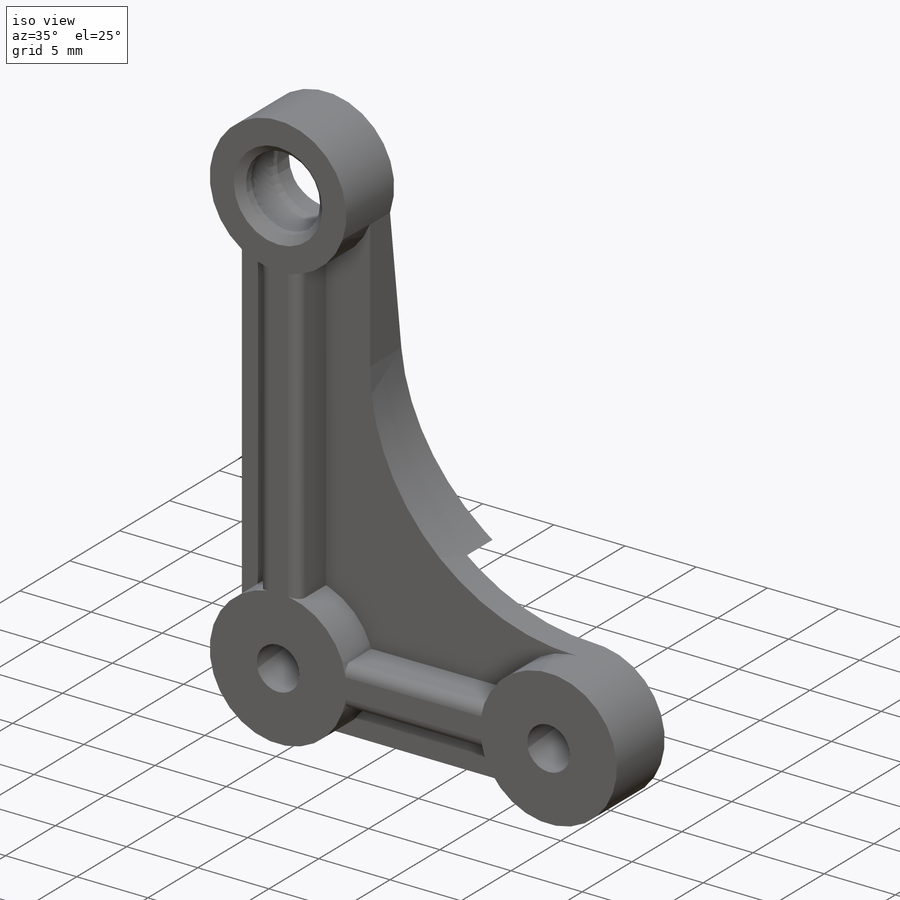
[diagram: iso view]
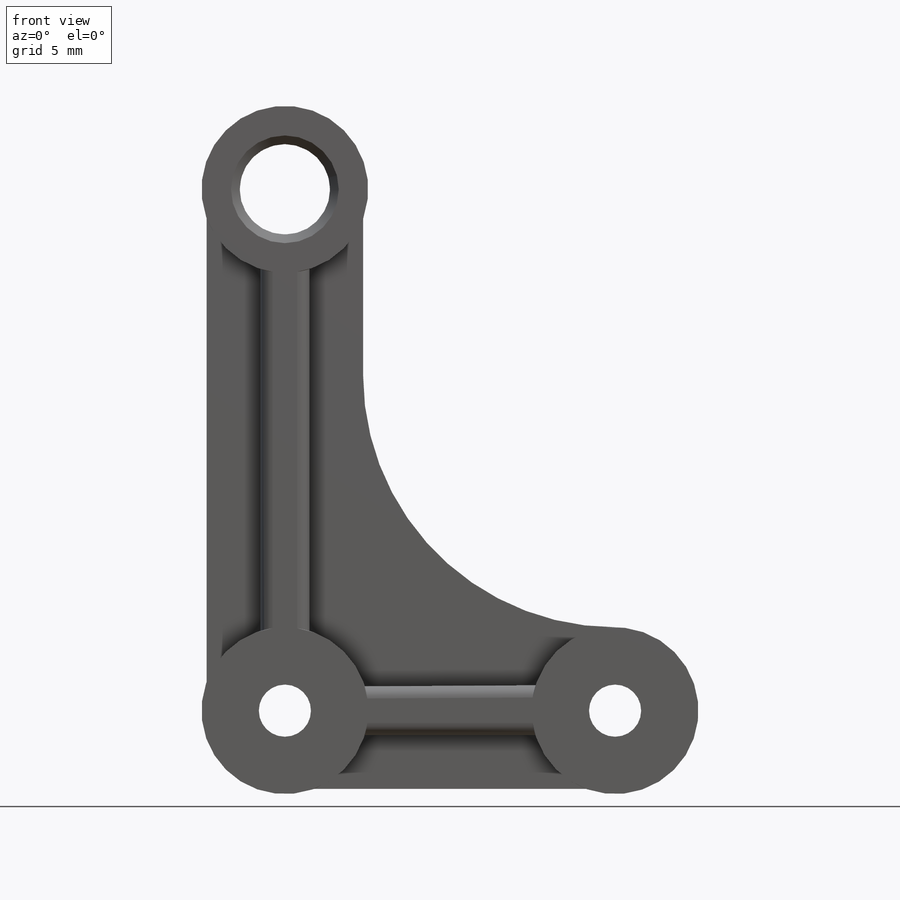
[diagram: front view]
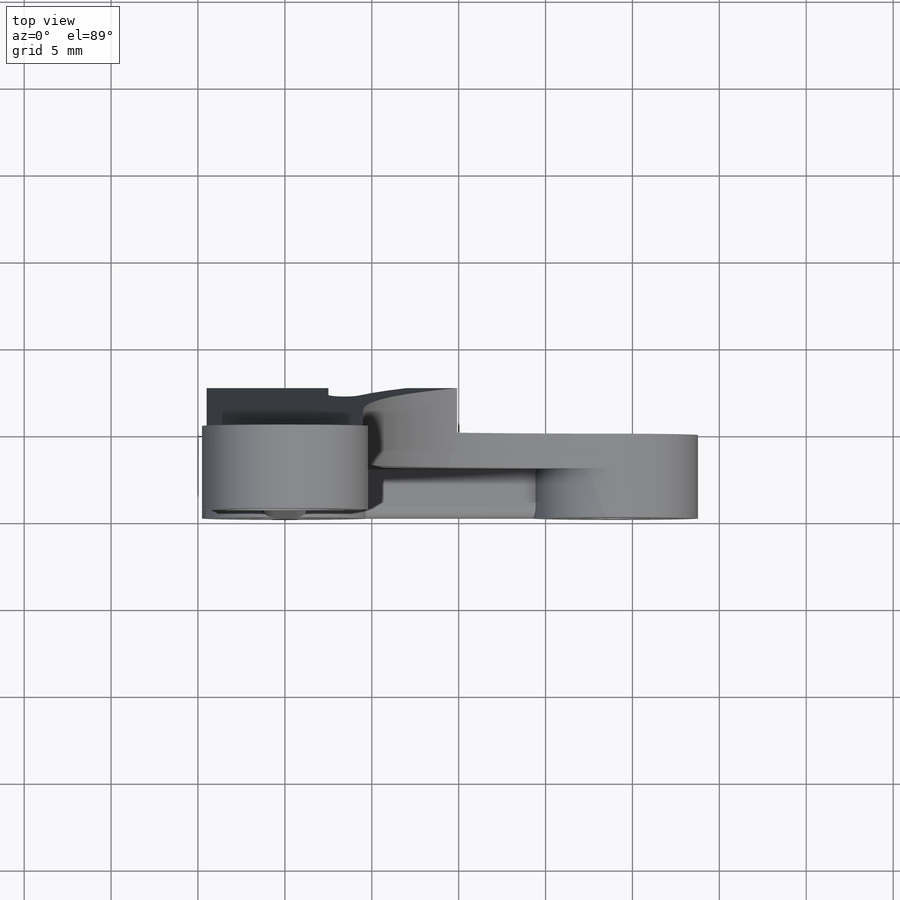
[diagram: top view]
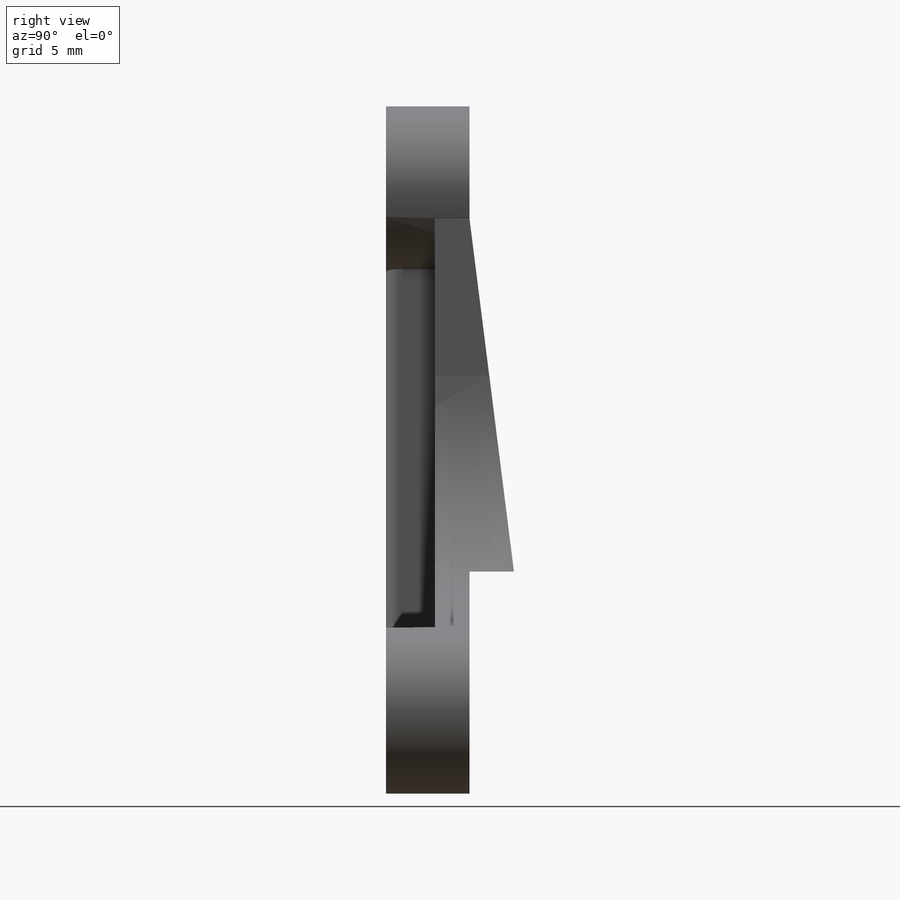
[diagram: right view]
SOLIDWORKS PART (.sldprt)
format: sldprt  version: not decoded by parser v0  size: 317,952 bytes
history: native  units: mm
features: sketch x5, plane x4, extrude x3, material x1, fillet x1, cut_revolve x1, chamfer x1 (+10 scaffold rows collapsed)
feature tree (26):
  scaffold x10  (default folders/planes/origin — collapsed)
  material  "材质 <未指定>"
  plane  "前视基准面"
  plane  "上视基准面"
  plane  "右视基准面"
  sketch  "草图1"  dims[D1=3.0mm D2=9.6mm D5=3.0mm D6=5.2mm D7=9.6mm D8=9.6mm D3=19.0mm D4=30.0mm D9=4.5mm D10=4.5mm D11=4.5mm]
  extrude  "凸台-拉伸1"  Depth=2mm
  sketch  "草图2"  dims[D1=1.4mm D2=1.4mm D3=1.4mm D4=1.4mm]
  extrude  "凸台-拉伸2"  Depth=2.8mm
  fillet  "圆角1"  Radius=0.7mm
  sketch  "草图3"  dims[c1.D1=2.5mm c1.D2=20.0mm c1.D3=~19.843135mm c2.D3=~7.180756deg]
  plane  "基准面1"
  sketch  "草图4"  dims[D1=22.0mm D2=7.0mm D3=3.5mm D4=2.0mm]
  extrude  "凸台-拉伸3"  [1 undecoded]
  sketch  "草图6"  dims[D2=5.8mm D1=2.5mm]
  cut_revolve  "切除-旋转1"  Angle=360deg
  chamfer  "倒角1"  Distance=0.5mm Angle=45deg
decode coverage: 10 of 11 modeling features carry decoded parameters
note: ~ marks probable driven/reference dimensions
note: 1 parameter value undecoded
note: suppression state not decoded; provenance and decode notes live in map.json
